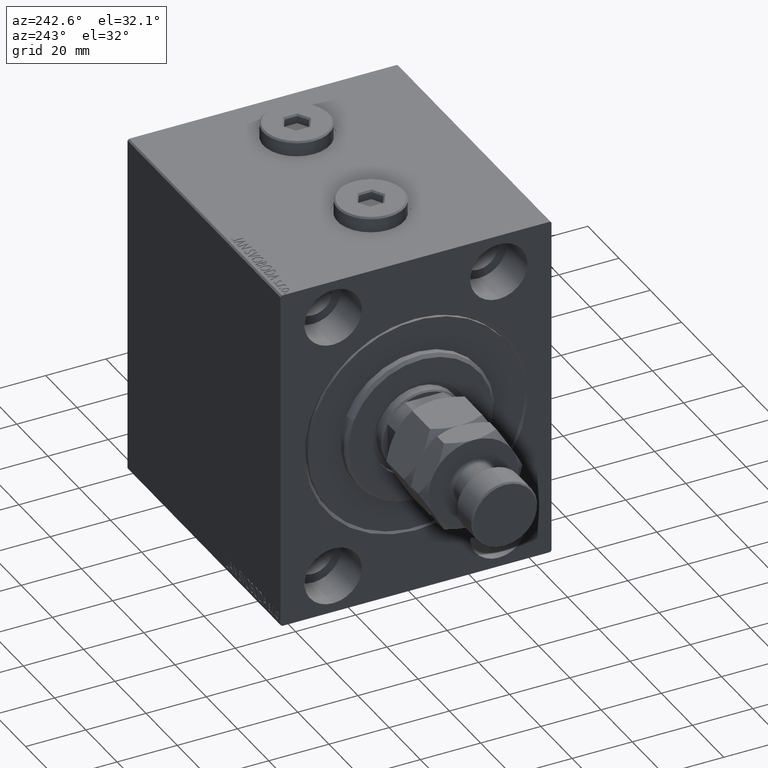
[diagram: clean part render]
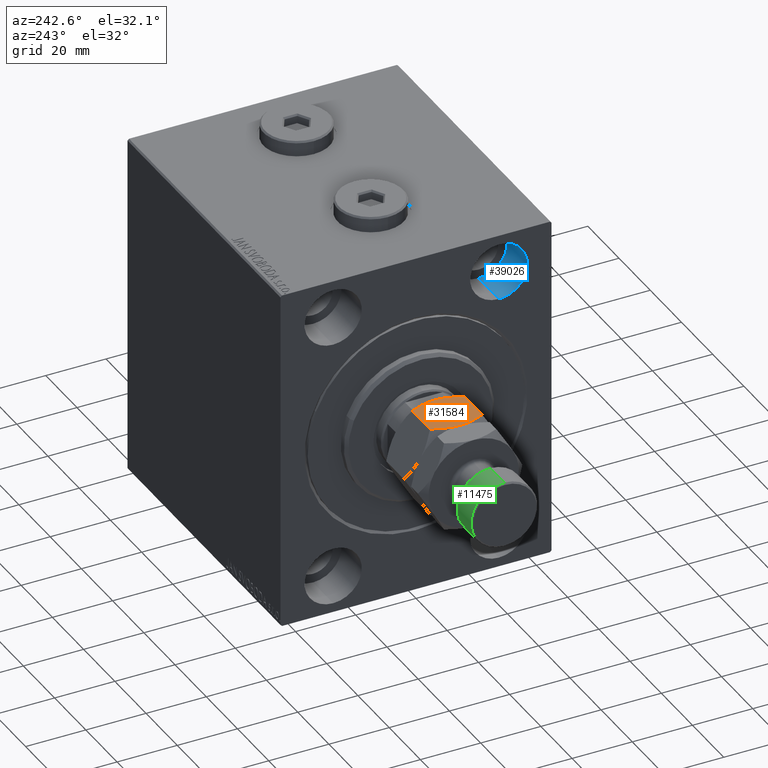
[diagram: same view with three faces highlighted in distinct colors, each labeled with its STEP entity id]
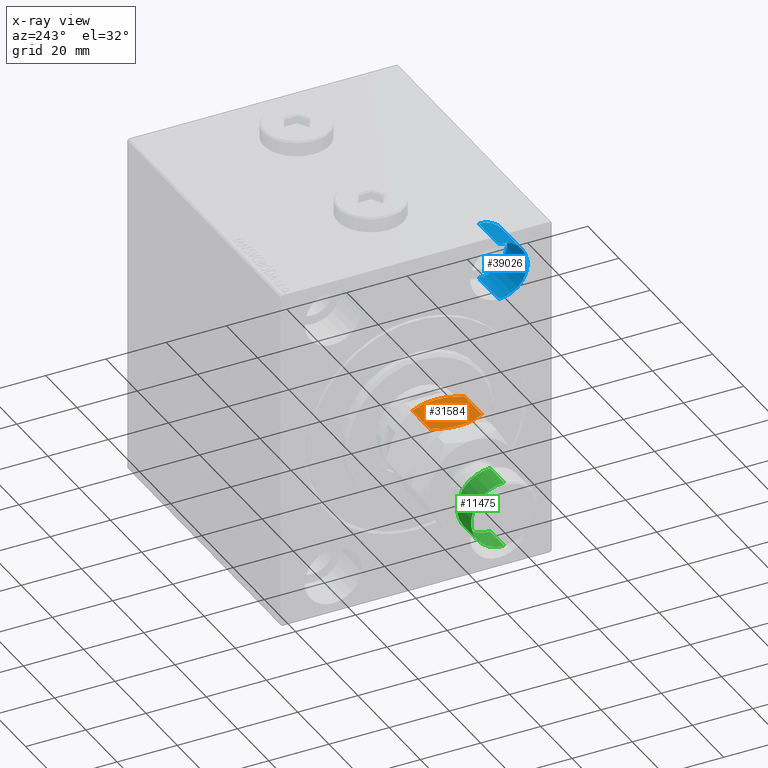
[diagram: x-ray of the same camera — body ghosted, the three highlighted faces saturated]
A machine part, auxiliary view with three faces highlighted in distinct colors.
The next image is the same camera in x-ray (body ghosted, the three faces saturated) — at least one of them is partly hidden behind the body in this view.
Their STEP definitions:

[orange] entity #31584 — the highlighted planar face has unit normal (0, 0, -1).
#889 = CARTESIAN_POINT ( 'NONE',  ( 15.00000000000000533, -1.527574731641585526, 16.00000000000001066 ) ) ;
#1567 = VERTEX_POINT ( 'NONE', #19591 ) ;
#1587 = CARTESIAN_POINT ( 'NONE',  ( 15.00000000000000178, 5.890999289811421846, 14.89758491968458465 ) ) ;
#1720 = EDGE_CURVE ( 'NONE', #19208, #11450, #23265, .T. ) ;
#2964 = CARTESIAN_POINT ( 'NONE',  ( 15.00000000000000533, 7.987879721624093321, 14.01567908242138927 ) ) ;
#4201 = CARTESIAN_POINT ( 'NONE',  ( 15.00000000000000000, -8.660254037844389075, 13.67949192431123961 ) ) ;
#4916 = ORIENTED_EDGE ( 'NONE', *, *, #8325, .F. ) ;
#7003 = CARTESIAN_POINT ( 'NONE',  ( 15.00000000000000533, -7.300329060372333423, 1.669694153640836065 ) ) ;
#7421 = CARTESIAN_POINT ( 'NONE',  ( 14.99999999999999822, 5.891877557735396564, 1.102734500939527296 ) ) ;
#7654 = CARTESIAN_POINT ( 'NONE',  ( 15.00000000000000000, 3.008020699068711501, 0.2357602839062953870 ) ) ;
#8325 = EDGE_CURVE ( 'NONE', #8764, #19208, #27620, .T. ) ;
#8764 = VERTEX_POINT ( 'NONE', #43844 ) ;
#10313 = CARTESIAN_POINT ( 'NONE',  ( 15.00000000000000000, -5.890999289811427175, 1.102415080315421125 ) ) ;
#10576 = DIRECTION ( 'NONE',  ( -1.000000000000000000, 0.000000000000000000, 0.000000000000000000 ) ) ;
#10754 = EDGE_LOOP ( 'NONE', ( #4916, #39503, #15773, #13449, #35705, #20133 ) ) ;
#10811 = CARTESIAN_POINT ( 'NONE',  ( 15.00000000000000000, -8.660254037844389075, 16.00000000000000000 ) ) ;
#10966 = CARTESIAN_POINT ( 'NONE',  ( 15.00000000000000000, 8.660254037844389075, 2.320508075688765715 ) ) ;
#11052 = PLANE ( 'NONE',  #19331 ) ;
#11123 = CARTESIAN_POINT ( 'NONE',  ( 14.99999999999999645, 0.000000000000000000, 16.00000000000000000 ) ) ;
#11450 = VERTEX_POINT ( 'NONE', #26992 ) ;
#11988 = CARTESIAN_POINT ( 'NONE',  ( 15.00000000000000000, 1.516896874073655477, 15.92818277676011007 ) ) ;
#12020 = CARTESIAN_POINT ( 'NONE',  ( 15.00000000000000000, -0.7629267201675461463, 0.01468466084192619932 ) ) ;
#12765 = EDGE_CURVE ( 'NONE', #41671, #1567, #28979, .T. ) ;
#13449 = ORIENTED_EDGE ( 'NONE', *, *, #44576, .F. ) ;
#14373 = DIRECTION ( 'NONE',  ( 0.000000000000000000, 0.000000000000000000, 1.000000000000000000 ) ) ;
#14612 = FACE_OUTER_BOUND ( 'NONE', #10754, .T. ) ;
#15081 = CARTESIAN_POINT ( 'NONE',  ( 15.00000000000000178, -5.891877557735398341, 14.89726549906047737 ) ) ;
#15311 = CARTESIAN_POINT ( 'NONE',  ( 15.00000000000000355, 0.7629267201675408172, 15.98531533915807934 ) ) ;
#15397 = EDGE_CURVE ( 'NONE', #16181, #11450, #31493, .T. ) ;
#15773 = ORIENTED_EDGE ( 'NONE', *, *, #12765, .F. ) ;
#16011 = CARTESIAN_POINT ( 'NONE',  ( 14.99999999999999645, 7.300329060372325429, 14.33030584635916860 ) ) ;
#16181 = VERTEX_POINT ( 'NONE', #44358 ) ;
#16503 = CARTESIAN_POINT ( 'NONE',  ( 15.00000000000000178, -1.890862710942016411, 0.1142538058331598050 ) ) ;
#16965 = CARTESIAN_POINT ( 'NONE',  ( 15.00000000000000000, -8.660254037844389075, 2.320508075688767047 ) ) ;
#18547 = CARTESIAN_POINT ( 'NONE',  ( 15.00000000000000178, 1.527574731641579753, -2.310705880109730931E-15 ) ) ;
#18627 = CARTESIAN_POINT ( 'NONE',  ( 15.00000000000000000, -7.301344312447432650, 14.32986304731390881 ) ) ;
#18864 = CARTESIAN_POINT ( 'NONE',  ( 15.00000000000000533, -3.008020699068709725, 15.76423971609371222 ) ) ;
#19208 = VERTEX_POINT ( 'NONE', #39094 ) ;
#19331 = AXIS2_PLACEMENT_3D ( 'NONE', #10811, #10576, #14373 ) ;
#19562 = CARTESIAN_POINT ( 'NONE',  ( 15.00000000000000000, 5.178726290334375371, 15.14627300035555990 ) ) ;
#19591 = CARTESIAN_POINT ( 'NONE',  ( 15.00000000000000000, 8.660254037844389075, 13.67949192431123784 ) ) ;
#20133 = ORIENTED_EDGE ( 'NONE', *, *, #1720, .F. ) ;
#20978 = CARTESIAN_POINT ( 'NONE',  ( 14.99999999999999822, -3.735400403320778384, 0.4426250994506710779 ) ) ;
#21868 = CARTESIAN_POINT ( 'NONE',  ( 15.00000000000000000, 5.176035048062463950, 0.8528038385778482500 ) ) ;
#22424 = CARTESIAN_POINT ( 'NONE',  ( 15.00000000000000178, -7.987590979791838741, 14.01582345333751967 ) ) ;
#23034 = LINE ( 'NONE', #45021, #45871 ) ;
#23262 = DIRECTION ( 'NONE',  ( -0.000000000000000000, -0.000000000000000000, -1.000000000000000000 ) ) ;
#23265 = B_SPLINE_CURVE_WITH_KNOTS ( 'NONE', 3,
 ( #30716, #44906, #12020, #26923, #16503, #30946, #20978, #42298, #10313, #7003, #32096, #16965 ),
 .UNSPECIFIED., .F., .F.,
 ( 4, 2, 2, 2, 2, 4 ),
 ( 0.03291042869972461704, 0.03403908204310902852, 0.03516773538649344694, 0.03742504207326226989, 0.03968234876003109979, 0.04193965544679992274 ),
 .UNSPECIFIED. ) ;
#23699 = DIRECTION ( 'NONE',  ( -0.000000000000000000, -0.000000000000000000, -1.000000000000000000 ) ) ;
#26428 = CARTESIAN_POINT ( 'NONE',  ( 15.00000000000000000, 1.890862710942010638, 15.88574619416683831 ) ) ;
#26657 = CARTESIAN_POINT ( 'NONE',  ( 15.00000000000000000, 3.004330627448758673, 15.71971113554880972 ) ) ;
#26892 = CARTESIAN_POINT ( 'NONE',  ( 14.99999999999999645, 0.000000000000000000, 16.00000000000000000 ) ) ;
#26923 = CARTESIAN_POINT ( 'NONE',  ( 15.00000000000000178, -1.516896874073660584, 0.07181722323989220280 ) ) ;
#26992 = CARTESIAN_POINT ( 'NONE',  ( 15.00000000000000000, -8.660254037844389075, 2.320508075688767047 ) ) ;
#27620 = B_SPLINE_CURVE_WITH_KNOTS ( 'NONE', 3,
 ( #10966, #28716, #32283, #7421, #21868, #7654, #18547, #43632 ),
 .UNSPECIFIED., .F., .F.,
 ( 4, 2, 2, 4 ),
 ( 0.02387628527307377596, 0.02613482112973648797, 0.02839335698639919650, 0.03291042869972461704 ),
 .UNSPECIFIED. ) ;
#28716 = CARTESIAN_POINT ( 'NONE',  ( 15.00000000000000000, 7.987590979791842294, 1.984176546662486773 ) ) ;
#28979 = B_SPLINE_CURVE_WITH_KNOTS ( 'NONE', 3,
 ( #26892, #30218, #15311, #11988, #26428, #26657, #41348, #19562, #1587, #16011, #2964, #30913 ),
 .UNSPECIFIED., .F., .F.,
 ( 4, 2, 2, 2, 2, 4 ),
 ( 0.03291042869972460316, 0.03403908204310901464, 0.03516773538649342612, 0.03742504207326225601, 0.03968234876003107897, 0.04193965544679990887 ),
 .UNSPECIFIED. ) ;
#29758 = CARTESIAN_POINT ( 'NONE',  ( 14.99999999999999645, 0.000000000000000000, 16.00000000000000000 ) ) ;
#30218 = CARTESIAN_POINT ( 'NONE',  ( 15.00000000000000178, 0.3816858437404682114, 16.00000000000001066 ) ) ;
#30716 = CARTESIAN_POINT ( 'NONE',  ( 15.00000000000000000, 0.000000000000000000, 0.000000000000000000 ) ) ;
#30913 = CARTESIAN_POINT ( 'NONE',  ( 15.00000000000000000, 8.660254037844389075, 13.67949192431123784 ) ) ;
#30946 = CARTESIAN_POINT ( 'NONE',  ( 15.00000000000000178, -3.004330627448764002, 0.2802888644511988825 ) ) ;
#31493 = LINE ( 'NONE', #35049, #37862 ) ;
#31584 = ADVANCED_FACE ( 'NONE', ( #14612 ), #11052, .F. ) ;
#32096 = CARTESIAN_POINT ( 'NONE',  ( 15.00000000000000178, -7.987879721624093321, 1.984320917578617616 ) ) ;
#32283 = CARTESIAN_POINT ( 'NONE',  ( 15.00000000000000178, 7.301344312447433538, 1.670136952686098741 ) ) ;
#33071 = CARTESIAN_POINT ( 'NONE',  ( 15.00000000000000355, -5.176035048062459509, 15.14719616142216196 ) ) ;
#35049 = CARTESIAN_POINT ( 'NONE',  ( 15.00000000000000000, -8.660254037844389075, 16.00000000000000000 ) ) ;
#35326 = EDGE_CURVE ( 'NONE', #1567, #8764, #23034, .T. ) ;
#35705 = ORIENTED_EDGE ( 'NONE', *, *, #15397, .T. ) ;
#35804 = B_SPLINE_CURVE_WITH_KNOTS ( 'NONE', 3,
 ( #4201, #22424, #18627, #15081, #33071, #18864, #889, #29758 ),
 .UNSPECIFIED., .F., .F.,
 ( 4, 2, 2, 4 ),
 ( 0.02387628527307377943, 0.02613482112973648450, 0.02839335698639919303, 0.03291042869972460316 ),
 .UNSPECIFIED. ) ;
#37862 = VECTOR ( 'NONE', #23699, 1000.000000000000000 ) ;
#39094 = CARTESIAN_POINT ( 'NONE',  ( 15.00000000000000000, 0.000000000000000000, 0.000000000000000000 ) ) ;
#39503 = ORIENTED_EDGE ( 'NONE', *, *, #35326, .F. ) ;
#41348 = CARTESIAN_POINT ( 'NONE',  ( 15.00000000000000000, 3.735400403320773055, 15.55737490054933403 ) ) ;
#41671 = VERTEX_POINT ( 'NONE', #11123 ) ;
#42298 = CARTESIAN_POINT ( 'NONE',  ( 14.99999999999999822, -5.178726290334377147, 0.8537269996444445397 ) ) ;
#43632 = CARTESIAN_POINT ( 'NONE',  ( 15.00000000000000000, 0.000000000000000000, 0.000000000000000000 ) ) ;
#43844 = CARTESIAN_POINT ( 'NONE',  ( 15.00000000000000000, 8.660254037844389075, 2.320508075688765715 ) ) ;
#44358 = CARTESIAN_POINT ( 'NONE',  ( 15.00000000000000000, -8.660254037844389075, 13.67949192431123961 ) ) ;
#44576 = EDGE_CURVE ( 'NONE', #16181, #41671, #35804, .T. ) ;
#44906 = CARTESIAN_POINT ( 'NONE',  ( 15.00000000000000178, -0.3816858437404750393, -1.673737103774498062E-15 ) ) ;
#45021 = CARTESIAN_POINT ( 'NONE',  ( 15.00000000000000000, 8.660254037844389075, 16.00000000000000000 ) ) ;
#45871 = VECTOR ( 'NONE', #23262, 1000.000000000000000 ) ;

[blue] entity #39026 — the highlighted cylindrical surface (edge-blend (fillet) strip) has radius 9.5 mm, axis along (-1, -0, -0).
#1986 = EDGE_CURVE ( 'NONE', #16100, #23158, #9896, .T. ) ;
#3974 = DIRECTION ( 'NONE',  ( 0.000000000000000000, 0.000000000000000000, 1.000000000000000000 ) ) ;
#4392 = AXIS2_PLACEMENT_3D ( 'NONE', #43961, #22902, #3974 ) ;
#4609 = DIRECTION ( 'NONE',  ( 0.000000000000000000, 0.000000000000000000, 1.000000000000000000 ) ) ;
#6878 = CARTESIAN_POINT ( 'NONE',  ( 13.00000000000000000, -27.49999999999998934, 54.50000000000000711 ) ) ;
#7791 = ORIENTED_EDGE ( 'NONE', *, *, #27462, .F. ) ;
#8074 = VERTEX_POINT ( 'NONE', #20093 ) ;
#9896 = CIRCLE ( 'NONE', #34876, 9.500000000000001776 ) ;
#12832 = DIRECTION ( 'NONE',  ( -1.000000000000000000, 0.000000000000000000, 0.000000000000000000 ) ) ;
#13311 = DIRECTION ( 'NONE',  ( 0.000000000000000000, 0.000000000000000000, 1.000000000000000000 ) ) ;
#13979 = VECTOR ( 'NONE', #37377, 1000.000000000000000 ) ;
#16100 = VERTEX_POINT ( 'NONE', #31614 ) ;
#18399 = CYLINDRICAL_SURFACE ( 'NONE', #4392, 9.500000000000001776 ) ;
#20093 = CARTESIAN_POINT ( 'NONE',  ( 0.000000000000000000, -27.49999999999998934, 54.50000000000000711 ) ) ;
#20236 = VECTOR ( 'NONE', #38157, 1000.000000000000000 ) ;
#22902 = DIRECTION ( 'NONE',  ( -1.000000000000000000, -0.000000000000000000, -0.000000000000000000 ) ) ;
#22926 = LINE ( 'NONE', #44684, #13979 ) ;
#23158 = VERTEX_POINT ( 'NONE', #6878 ) ;
#23968 = ORIENTED_EDGE ( 'NONE', *, *, #37540, .T. ) ;
#25477 = AXIS2_PLACEMENT_3D ( 'NONE', #41062, #26141, #4609 ) ;
#26141 = DIRECTION ( 'NONE',  ( -1.000000000000000000, 0.000000000000000000, 0.000000000000000000 ) ) ;
#26407 = CARTESIAN_POINT ( 'NONE',  ( 13.00000000000000000, -27.49999999999998934, 45.00000000000000711 ) ) ;
#27462 = EDGE_CURVE ( 'NONE', #23158, #8074, #22926, .T. ) ;
#28577 = LINE ( 'NONE', #43023, #20236 ) ;
#31614 = CARTESIAN_POINT ( 'NONE',  ( 13.00000000000000000, -27.49999999999998934, 35.50000000000000711 ) ) ;
#33791 = FACE_OUTER_BOUND ( 'NONE', #41799, .T. ) ;
#34876 = AXIS2_PLACEMENT_3D ( 'NONE', #26407, #12832, #13311 ) ;
#37377 = DIRECTION ( 'NONE',  ( -1.000000000000000000, -0.000000000000000000, -0.000000000000000000 ) ) ;
#37469 = CARTESIAN_POINT ( 'NONE',  ( 0.000000000000000000, -27.49999999999998934, 35.50000000000000711 ) ) ;
#37540 = EDGE_CURVE ( 'NONE', #16100, #41507, #28577, .T. ) ;
#38157 = DIRECTION ( 'NONE',  ( -1.000000000000000000, -0.000000000000000000, -0.000000000000000000 ) ) ;
#39026 = ADVANCED_FACE ( 'NONE', ( #33791 ), #18399, .F. ) ;
#41062 = CARTESIAN_POINT ( 'NONE',  ( 0.000000000000000000, -27.49999999999998934, 45.00000000000000711 ) ) ;
#41507 = VERTEX_POINT ( 'NONE', #37469 ) ;
#41799 = EDGE_LOOP ( 'NONE', ( #42163, #23968, #41975, #7791 ) ) ;
#41975 = ORIENTED_EDGE ( 'NONE', *, *, #45072, .T. ) ;
#42163 = ORIENTED_EDGE ( 'NONE', *, *, #1986, .F. ) ;
#43023 = CARTESIAN_POINT ( 'NONE',  ( 13.00000000000000000, -27.49999999999998934, 35.50000000000000711 ) ) ;
#43961 = CARTESIAN_POINT ( 'NONE',  ( 13.00000000000000000, -27.49999999999998934, 45.00000000000000711 ) ) ;
#44370 = CIRCLE ( 'NONE', #25477, 9.500000000000001776 ) ;
#44684 = CARTESIAN_POINT ( 'NONE',  ( 13.00000000000000000, -27.49999999999998934, 54.50000000000000711 ) ) ;
#45072 = EDGE_CURVE ( 'NONE', #41507, #8074, #44370, .T. ) ;

[green] entity #11475 — the highlighted cylindrical surface (partial cylindrical patch) has radius 11 mm, axis along (1, -0, -0).
#2641 = CIRCLE ( 'NONE', #43819, 11.00000000000000000 ) ;
#2948 = EDGE_LOOP ( 'NONE', ( #6369, #23666, #41034, #3820 ) ) ;
#2997 = EDGE_CURVE ( 'NONE', #32012, #29200, #28714, .T. ) ;
#3820 = ORIENTED_EDGE ( 'NONE', *, *, #2997, .F. ) ;
#6186 = VECTOR ( 'NONE', #7652, 1000.000000000000000 ) ;
#6303 = DIRECTION ( 'NONE',  ( 1.000000000000000000, 0.000000000000000000, 0.000000000000000000 ) ) ;
#6369 = ORIENTED_EDGE ( 'NONE', *, *, #42057, .T. ) ;
#7652 = DIRECTION ( 'NONE',  ( -0.000000000000000000, -0.000000000000000000, -1.000000000000000000 ) ) ;
#8072 = FACE_OUTER_BOUND ( 'NONE', #2948, .T. ) ;
#8890 = CARTESIAN_POINT ( 'NONE',  ( 0.000000000000000000, 0.000000000000000000, 35.50000000000001421 ) ) ;
#9774 = CARTESIAN_POINT ( 'NONE',  ( -11.00000000000000000, 0.000000000000000000, 44.50000000000001421 ) ) ;
#11475 = ADVANCED_FACE ( 'NONE', ( #8072 ), #29852, .T. ) ;
#12221 = EDGE_CURVE ( 'NONE', #38076, #29200, #2641, .T. ) ;
#12478 = CARTESIAN_POINT ( 'NONE',  ( 0.000000000000000000, 0.000000000000000000, 44.50000000000001421 ) ) ;
#14557 = CARTESIAN_POINT ( 'NONE',  ( 11.00000000000000000, 1.347111479062088405E-15, 35.50000000000001421 ) ) ;
#15150 = DIRECTION ( 'NONE',  ( -0.000000000000000000, -0.000000000000000000, -1.000000000000000000 ) ) ;
#19653 = DIRECTION ( 'NONE',  ( -1.000000000000000000, 0.000000000000000000, 0.000000000000000000 ) ) ;
#22774 = CARTESIAN_POINT ( 'NONE',  ( 11.00000000000000000, 1.347111479062088405E-15, 44.50000000000001421 ) ) ;
#23333 = DIRECTION ( 'NONE',  ( 1.000000000000000000, 0.000000000000000000, 0.000000000000000000 ) ) ;
#23666 = ORIENTED_EDGE ( 'NONE', *, *, #32513, .T. ) ;
#24868 = AXIS2_PLACEMENT_3D ( 'NONE', #12478, #37818, #6303 ) ;
#28714 = LINE ( 'NONE', #36076, #6186 ) ;
#29200 = VERTEX_POINT ( 'NONE', #35986 ) ;
#29852 = CYLINDRICAL_SURFACE ( 'NONE', #37423, 11.00000000000000000 ) ;
#32012 = VERTEX_POINT ( 'NONE', #9774 ) ;
#32221 = VERTEX_POINT ( 'NONE', #22774 ) ;
#32513 = EDGE_CURVE ( 'NONE', #32221, #38076, #44483, .T. ) ;
#33874 = DIRECTION ( 'NONE',  ( -0.000000000000000000, -0.000000000000000000, -1.000000000000000000 ) ) ;
#34698 = DIRECTION ( 'NONE',  ( -0.000000000000000000, -0.000000000000000000, 1.000000000000000000 ) ) ;
#35241 = VECTOR ( 'NONE', #15150, 1000.000000000000000 ) ;
#35986 = CARTESIAN_POINT ( 'NONE',  ( -11.00000000000000000, 0.000000000000000000, 35.50000000000001421 ) ) ;
#36076 = CARTESIAN_POINT ( 'NONE',  ( -11.00000000000000000, 0.000000000000000000, 45.00000000000000711 ) ) ;
#36466 = CARTESIAN_POINT ( 'NONE',  ( 11.00000000000000000, 1.347111479062088405E-15, 45.00000000000000711 ) ) ;
#37423 = AXIS2_PLACEMENT_3D ( 'NONE', #40982, #33874, #19653 ) ;
#37818 = DIRECTION ( 'NONE',  ( 0.000000000000000000, 0.000000000000000000, -1.000000000000000000 ) ) ;
#38076 = VERTEX_POINT ( 'NONE', #14557 ) ;
#40982 = CARTESIAN_POINT ( 'NONE',  ( 0.000000000000000000, 0.000000000000000000, 45.00000000000000711 ) ) ;
#41034 = ORIENTED_EDGE ( 'NONE', *, *, #12221, .T. ) ;
#42057 = EDGE_CURVE ( 'NONE', #32012, #32221, #45292, .T. ) ;
#43819 = AXIS2_PLACEMENT_3D ( 'NONE', #8890, #34698, #23333 ) ;
#44483 = LINE ( 'NONE', #36466, #35241 ) ;
#45292 = CIRCLE ( 'NONE', #24868, 11.00000000000000000 ) ;